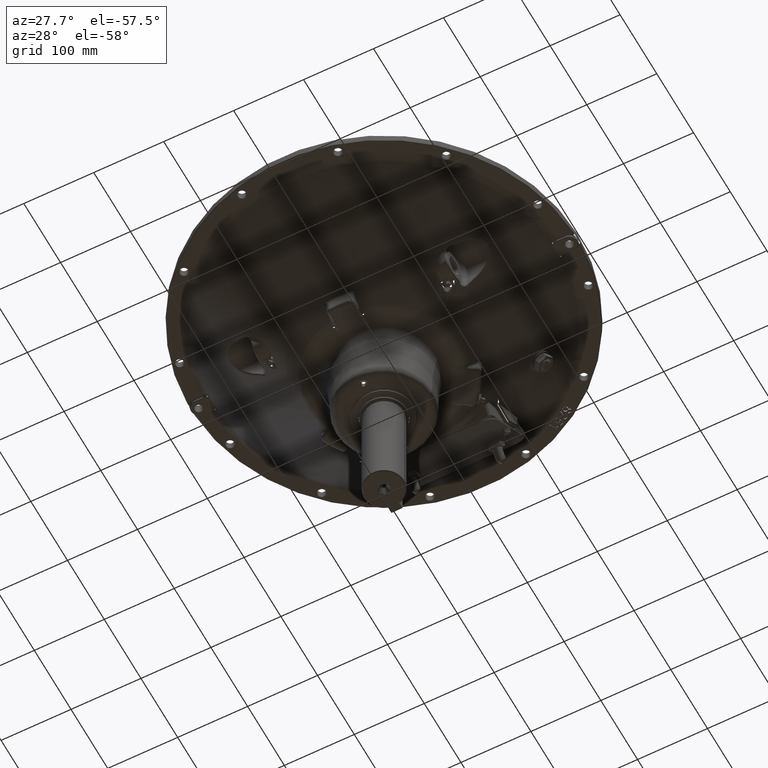
[diagram: clean part render]
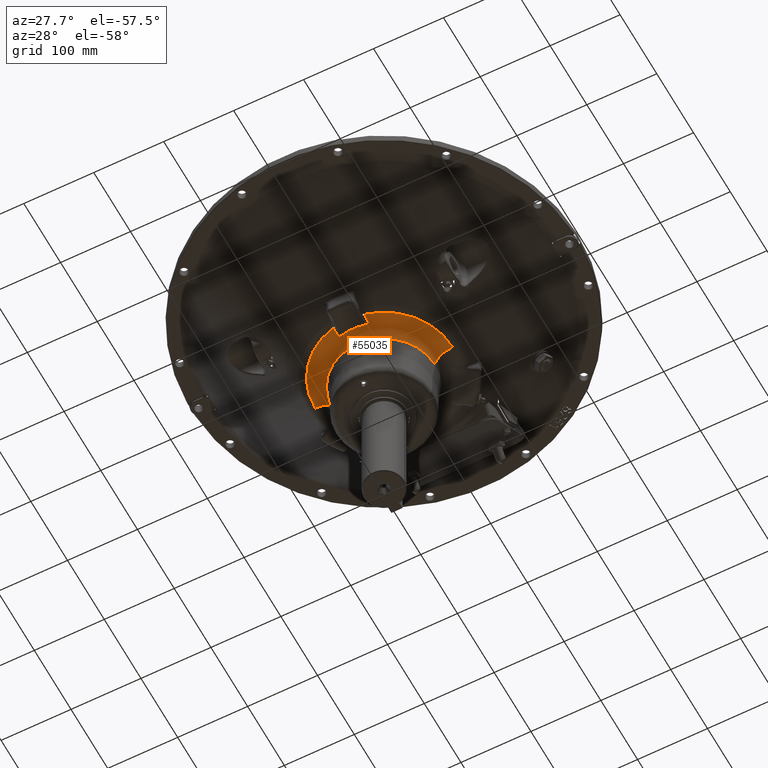
[diagram: same view with one face highlighted and labeled with its STEP entity id]
A machine part, auxiliary view. The second image highlights one B-rep face of the part: STEP entity #55035.
In plain terms, the highlighted toroidal blend (fillet) surface has major radius 98.2177 mm and minor (blend) radius 25.4 mm.
Its self-contained STEP definition (entity closure, byte-faithful):
#8875 = TOROIDAL_SURFACE ( 'NONE', #18579, 98.21767752688875000, 25.40000000000002000 ) ;
#8881 = FACE_OUTER_BOUND ( 'NONE', #39874, .T. ) ;
#13211 = DIRECTION ( 'NONE',  ( -0.0000000000000000000, -0.0000000000000000000, 1.000000000000000000 ) ) ;
#13230 = CARTESIAN_POINT ( 'NONE',  ( 0.0000000000000000000, 0.0000000000000000000, -161.9249999999999500 ) ) ;
#13253 = DIRECTION ( 'NONE',  ( 1.000000000000000000, 0.0000000000000000000, 0.0000000000000000000 ) ) ;
#18579 = AXIS2_PLACEMENT_3D ( 'NONE', #13230, #13211, #13253 ) ;
#20178 = CARTESIAN_POINT ( 'NONE',  ( -98.21767752688875000, 1.202819644029912200E-014, -136.5249999999999500 ) ) ;
#20185 = CARTESIAN_POINT ( 'NONE',  ( -22.22608836615855300, -95.66981328880923700, -136.5249999999999200 ) ) ;
#20186 = CARTESIAN_POINT ( 'NONE',  ( -73.02499999999997700, 8.942983250773544600E-015, -158.6863275827594500 ) ) ;
#20187 = CARTESIAN_POINT ( 'NONE',  ( 73.02499999999997700, 0.0000000000000000000, -158.6863275827594500 ) ) ;
#20188 = CARTESIAN_POINT ( 'NONE',  ( 98.21767752688875000, 0.0000000000000000000, -136.5249999999999500 ) ) ;
#20210 = CARTESIAN_POINT ( 'NONE',  ( 22.22608836615848600, -95.66981328880925200, -136.5249999999999200 ) ) ;
#20211 = CARTESIAN_POINT ( 'NONE',  ( 21.72561485273403300, -82.31592141607914900, -140.1535714285714100 ) ) ;
#20281 = CARTESIAN_POINT ( 'NONE',  ( -21.72561485273405400, -82.31592141607913500, -140.1535714285714100 ) ) ;
#25846 = EDGE_CURVE ( 'NONE', #55673, #55681, #27364, .T. ) ;
#25850 = EDGE_CURVE ( 'NONE', #55706, #55776, #27370, .T. ) ;
#25851 = EDGE_CURVE ( 'NONE', #55705, #55706, #29828, .T. ) ;
#25882 = EDGE_CURVE ( 'NONE', #55776, #55680, #29837, .T. ) ;
#25885 = EDGE_CURVE ( 'NONE', #55673, #55680, #27423, .T. ) ;
#25901 = EDGE_CURVE ( 'NONE', #55705, #55683, #27444, .T. ) ;
#25909 = EDGE_CURVE ( 'NONE', #55681, #55682, #27463, .T. ) ;
#25926 = EDGE_CURVE ( 'NONE', #55683, #55682, #27484, .T. ) ;
#27364 = CIRCLE ( 'NONE', #45898, 25.40000000000002000 ) ;
#27370 = CIRCLE ( 'NONE', #45902, 85.13467718449089700 ) ;
#27423 = CIRCLE ( 'NONE', #45910, 98.21767752688875000 ) ;
#27444 = CIRCLE ( 'NONE', #45913, 98.21767752688875000 ) ;
#27463 = CIRCLE ( 'NONE', #45917, 73.02499999999997700 ) ;
#27484 = CIRCLE ( 'NONE', #45919, 25.40000000000000600 ) ;
#29828 = B_SPLINE_CURVE_WITH_KNOTS ( 'NONE', 3,
 ( #47883, #47887, #47888, #47889, #47890, #47891, #47892, #47893, #47894, #47895 ),
 .UNSPECIFIED., .F., .F.,
 ( 4, 2, 2, 2, 4 ),
 ( 0.0000000000000000000, 0.003477889414699886500, 0.006955778829399773000, 0.01043366824409965900, 0.01391155765879954600 ),
 .UNSPECIFIED. ) ;
#29837 = B_SPLINE_CURVE_WITH_KNOTS ( 'NONE', 3,
 ( #47957, #47961, #47962, #47963, #47964, #47965, #47966, #47967, #47968, #47969 ),
 .UNSPECIFIED., .F., .F.,
 ( 4, 2, 2, 2, 4 ),
 ( 1.387778780781445700E-017, 0.003512157518823017200, 0.007024315037646020600, 0.01053647255646902300, 0.01404863007529202700 ),
 .UNSPECIFIED. ) ;
#39874 = EDGE_LOOP ( 'NONE', ( #63596, #63597, #63598, #63599, #63600, #63601, #63602, #63603 ) ) ;
#45898 = AXIS2_PLACEMENT_3D ( 'NONE', #47871, #47879, #47880 ) ;
#45902 = AXIS2_PLACEMENT_3D ( 'NONE', #47881, #47884, #47885 ) ;
#45910 = AXIS2_PLACEMENT_3D ( 'NONE', #47959, #47974, #47975 ) ;
#45913 = AXIS2_PLACEMENT_3D ( 'NONE', #48019, #48071, #48072 ) ;
#45917 = AXIS2_PLACEMENT_3D ( 'NONE', #48073, #48084, #48085 ) ;
#45919 = AXIS2_PLACEMENT_3D ( 'NONE', #48113, #48143, #48144 ) ;
#47871 = CARTESIAN_POINT ( 'NONE',  ( -98.21767752688875000, 1.202819644029912200E-014, -161.9249999999999500 ) ) ;
#47879 = DIRECTION ( 'NONE',  ( 1.224646799147353200E-016, 1.000000000000000000, 0.0000000000000000000 ) ) ;
#47880 = DIRECTION ( 'NONE',  ( -1.000000000000000000, 1.224646799147353500E-016, 0.0000000000000000000 ) ) ;
#47881 = CARTESIAN_POINT ( 'NONE',  ( 0.0000000000000000000, 0.0000000000000000000, -140.1535714285716400 ) ) ;
#47883 = CARTESIAN_POINT ( 'NONE',  ( 22.22608836615848600, -95.66981328880925200, -136.5249999999999200 ) ) ;
#47884 = DIRECTION ( 'NONE',  ( -0.0000000000000000000, 0.0000000000000000000, -1.000000000000000000 ) ) ;
#47885 = DIRECTION ( 'NONE',  ( -1.000000000000000000, 0.0000000000000000000, 0.0000000000000000000 ) ) ;
#47887 = CARTESIAN_POINT ( 'NONE',  ( 22.19348639817282600, -94.49414108676536700, -136.5249999999998900 ) ) ;
#47888 = CARTESIAN_POINT ( 'NONE',  ( 22.15846995086429400, -93.33189991686562300, -136.6030720597605900 ) ) ;
#47889 = CARTESIAN_POINT ( 'NONE',  ( 22.08372094802640400, -91.03318827148376600, -136.9089998523140000 ) ) ;
#47890 = CARTESIAN_POINT ( 'NONE',  ( 22.04398752080489000, -89.89672089074525700, -137.1368735117641500 ) ) ;
#47891 = CARTESIAN_POINT ( 'NONE',  ( 21.95976507095694400, -87.64990749722250000, -137.7444475711823500 ) ) ;
#47892 = CARTESIAN_POINT ( 'NONE',  ( 21.91500866830292800, -86.53378541710812000, -138.1271042725101700 ) ) ;
#47893 = CARTESIAN_POINT ( 'NONE',  ( 21.82259532267470400, -84.37511359134416000, -139.0335937181085600 ) ) ;
#47894 = CARTESIAN_POINT ( 'NONE',  ( 21.77482633911812500, -83.32873097232565800, -139.5575531296642300 ) ) ;
#47895 = CARTESIAN_POINT ( 'NONE',  ( 21.72561485273403300, -82.31592141607914900, -140.1535714285714100 ) ) ;
#47957 = CARTESIAN_POINT ( 'NONE',  ( -21.72561485273405400, -82.31592141607913500, -140.1535714285714100 ) ) ;
#47959 = CARTESIAN_POINT ( 'NONE',  ( 0.0000000000000000000, 0.0000000000000000000, -136.5249999999999200 ) ) ;
#47961 = CARTESIAN_POINT ( 'NONE',  ( -21.77482633911814600, -83.32873097232564400, -139.5575531296642300 ) ) ;
#47962 = CARTESIAN_POINT ( 'NONE',  ( -21.82259532267473300, -84.37511359134418900, -139.0335937181085600 ) ) ;
#47963 = CARTESIAN_POINT ( 'NONE',  ( -21.91500866830294900, -86.53378541710810600, -138.1271042725101700 ) ) ;
#47964 = CARTESIAN_POINT ( 'NONE',  ( -21.95976507095698000, -87.64990749722248600, -137.7444475711823500 ) ) ;
#47965 = CARTESIAN_POINT ( 'NONE',  ( -22.04398752080491500, -89.89672089074524300, -137.1368735117641500 ) ) ;
#47966 = CARTESIAN_POINT ( 'NONE',  ( -22.08372094802643200, -91.03318827148375200, -136.9089998523140500 ) ) ;
#47967 = CARTESIAN_POINT ( 'NONE',  ( -22.15846995086433000, -93.33189991686559500, -136.6030720597605900 ) ) ;
#47968 = CARTESIAN_POINT ( 'NONE',  ( -22.19348639817284800, -94.49414108676518300, -136.5249999999999500 ) ) ;
#47969 = CARTESIAN_POINT ( 'NONE',  ( -22.22608836615855300, -95.66981328880923700, -136.5249999999999200 ) ) ;
#47974 = DIRECTION ( 'NONE',  ( -0.0000000000000000000, -0.0000000000000000000, 1.000000000000000000 ) ) ;
#47975 = DIRECTION ( 'NONE',  ( 1.000000000000000000, 0.0000000000000000000, 0.0000000000000000000 ) ) ;
#48019 = CARTESIAN_POINT ( 'NONE',  ( 0.0000000000000000000, 0.0000000000000000000, -136.5249999999999200 ) ) ;
#48071 = DIRECTION ( 'NONE',  ( -0.0000000000000000000, -0.0000000000000000000, 1.000000000000000000 ) ) ;
#48072 = DIRECTION ( 'NONE',  ( 1.000000000000000000, 0.0000000000000000000, 0.0000000000000000000 ) ) ;
#48073 = CARTESIAN_POINT ( 'NONE',  ( 0.0000000000000000000, 0.0000000000000000000, -158.6863275827594500 ) ) ;
#48084 = DIRECTION ( 'NONE',  ( -0.0000000000000000000, -0.0000000000000000000, 1.000000000000000000 ) ) ;
#48085 = DIRECTION ( 'NONE',  ( 1.000000000000000000, 0.0000000000000000000, 0.0000000000000000000 ) ) ;
#48113 = CARTESIAN_POINT ( 'NONE',  ( 98.21767752688875000, 0.0000000000000000000, -161.9249999999999500 ) ) ;
#48143 = DIRECTION ( 'NONE',  ( 0.0000000000000000000, -1.000000000000000000, 0.0000000000000000000 ) ) ;
#48144 = DIRECTION ( 'NONE',  ( 0.0000000000000000000, 0.0000000000000000000, -1.000000000000000000 ) ) ;
#55035 = ADVANCED_FACE ( 'NONE', ( #8881 ), #8875, .F. ) ;
#55673 = VERTEX_POINT ( 'NONE', #20178 ) ;
#55680 = VERTEX_POINT ( 'NONE', #20185 ) ;
#55681 = VERTEX_POINT ( 'NONE', #20186 ) ;
#55682 = VERTEX_POINT ( 'NONE', #20187 ) ;
#55683 = VERTEX_POINT ( 'NONE', #20188 ) ;
#55705 = VERTEX_POINT ( 'NONE', #20210 ) ;
#55706 = VERTEX_POINT ( 'NONE', #20211 ) ;
#55776 = VERTEX_POINT ( 'NONE', #20281 ) ;
#63596 = ORIENTED_EDGE ( 'NONE', *, *, #25885, .F. ) ;
#63597 = ORIENTED_EDGE ( 'NONE', *, *, #25846, .T. ) ;
#63598 = ORIENTED_EDGE ( 'NONE', *, *, #25909, .T. ) ;
#63599 = ORIENTED_EDGE ( 'NONE', *, *, #25926, .F. ) ;
#63600 = ORIENTED_EDGE ( 'NONE', *, *, #25901, .F. ) ;
#63601 = ORIENTED_EDGE ( 'NONE', *, *, #25851, .T. ) ;
#63602 = ORIENTED_EDGE ( 'NONE', *, *, #25850, .T. ) ;
#63603 = ORIENTED_EDGE ( 'NONE', *, *, #25882, .T. ) ;